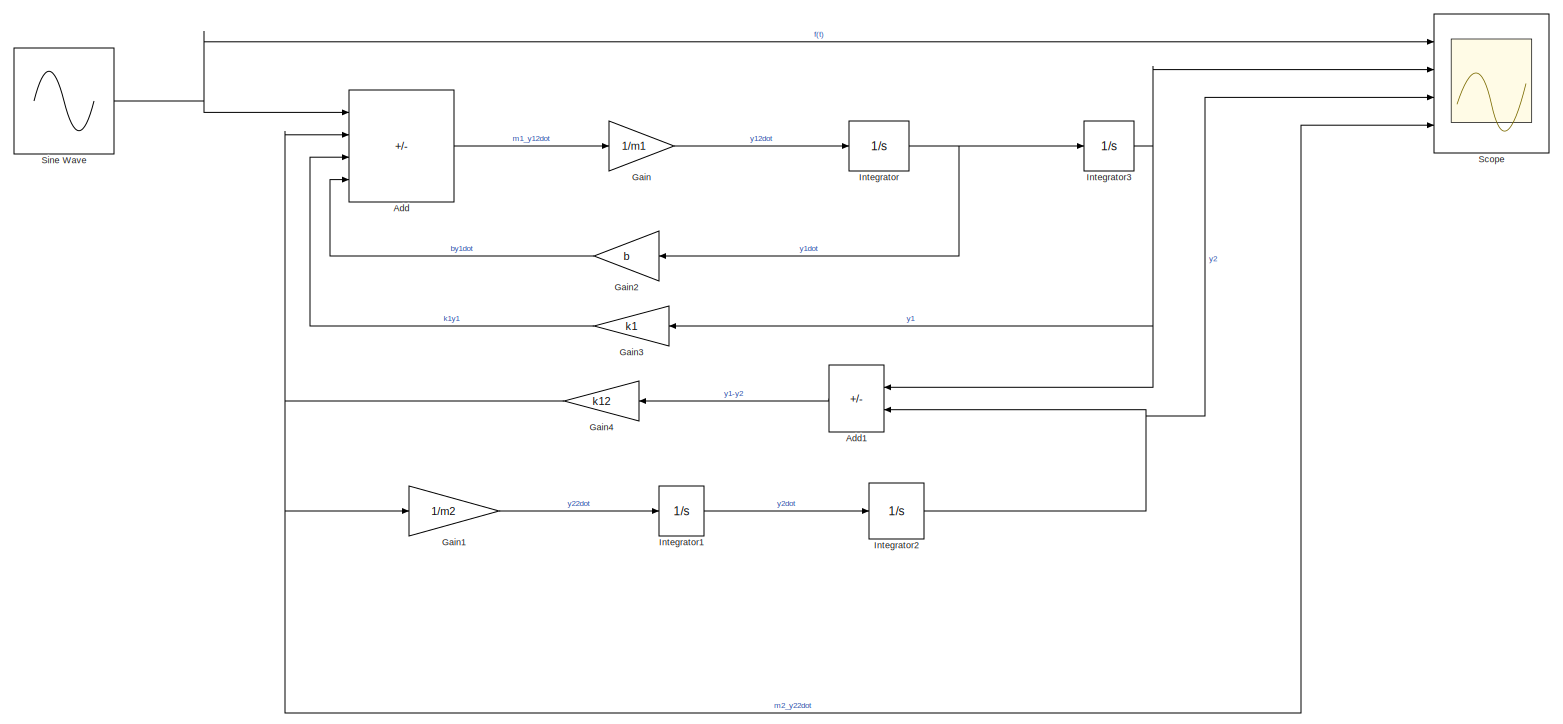
[diagram: root canvas - part 1/1, most of the canvas]
MODEL slx_3aebfa3f9ce3
KIND model
CONFIG AbsTol = auto
CONFIG EnableMultiTasking = off
CONFIG FixedStep = auto
CONFIG MaxStep = auto
CONFIG MinStep = auto
CONFIG RelTol = 1e-3
CONFIG SampleTimeConstraint = Unconstrained
CONFIG SolverName = VariableStepAuto
CONFIG StartTime = 0.0
CONFIG StopTime = 10.0
BLOCK [Sum] Add
  IconShape = rectangular
  Inputs = +---
  Ports = [4, 1]
BLOCK [Sum] Add1
  IconShape = rectangular
  Inputs = +-
  NameLocation = top
  Ports = [2, 1]
BLOCK [Gain] Gain
  Gain = 1/m1
BLOCK [Gain] Gain1
  Gain = 1/m2
BLOCK [Gain] Gain2
  Gain = b
  NameLocation = top
BLOCK [Gain] Gain3
  Gain = k1
  NameLocation = top
BLOCK [Gain] Gain4
  Gain = k12
  NameLocation = top
BLOCK [Integrator] Integrator
  InitialCondition = 1
  Ports = [1, 1]
BLOCK [Integrator] Integrator1
  Ports = [1, 1]
BLOCK [Integrator] Integrator2
  Ports = [1, 1]
BLOCK [Integrator] Integrator3
  Ports = [1, 1]
BLOCK [Scope] Scope
  Floating = off
  NumInputPorts = 4
  Ports = [4]
  ScopeSpecificationString = Simulink.scopes.TimeScopeBlockCfg('CurrentConfiguration', extmgr.ConfigurationSet(extmgr.Configuration('Core','General UI',true),extmgr.Configuration('Core','Source UI',true),extmgr.Configuration('Sources','WiredSimulink',true),extmgr.Configuration('Visuals','Time Domain',true,'SerializedDisplays',{struct('MinYLimReal','-2.5','MaxYLimReal','2.5','YLabelReal','','MinYLimMag','0.00000','MaxYLimMag',...<+3382ch>
BLOCK [Sin] Sine Wave
  Amplitude = 2
  Frequency = 2*pi*10
  Ports = [0, 1]
  SampleTime = 0.005
LINE Add1:1 -> Gain4:1
LINE Add:1 -> Gain:1
LINE Gain1:1 -> Integrator1:1
LINE Gain2:1 -> Add:4
LINE Gain3:1 -> Add:3
NET Gain4:1 -> Add:2, Gain1:1, Scope:4
LINE Gain:1 -> Integrator:1
LINE Integrator1:1 -> Integrator2:1
NET Integrator2:1 -> Add1:2, Scope:3
NET Integrator3:1 -> Add1:1, Gain3:1, Scope:2
NET Integrator:1 -> Gain2:1, Integrator3:1
NET Sine Wave:1 -> Add:1, Scope:1
note: NET lines group one-source signal fan-out (src -> all destinations, sorted); 1:1 wires keep LINE
